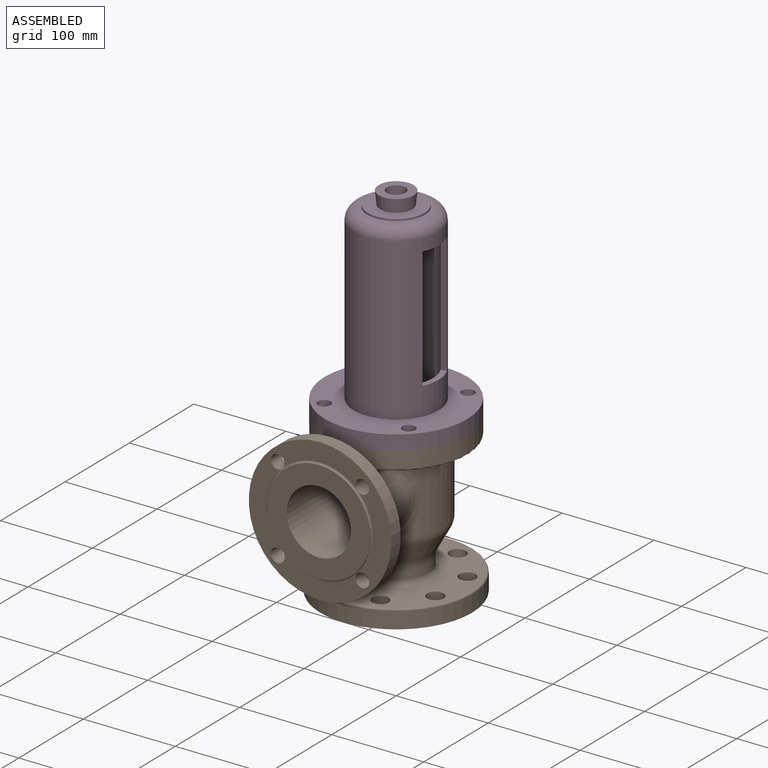
[diagram: assembled view]
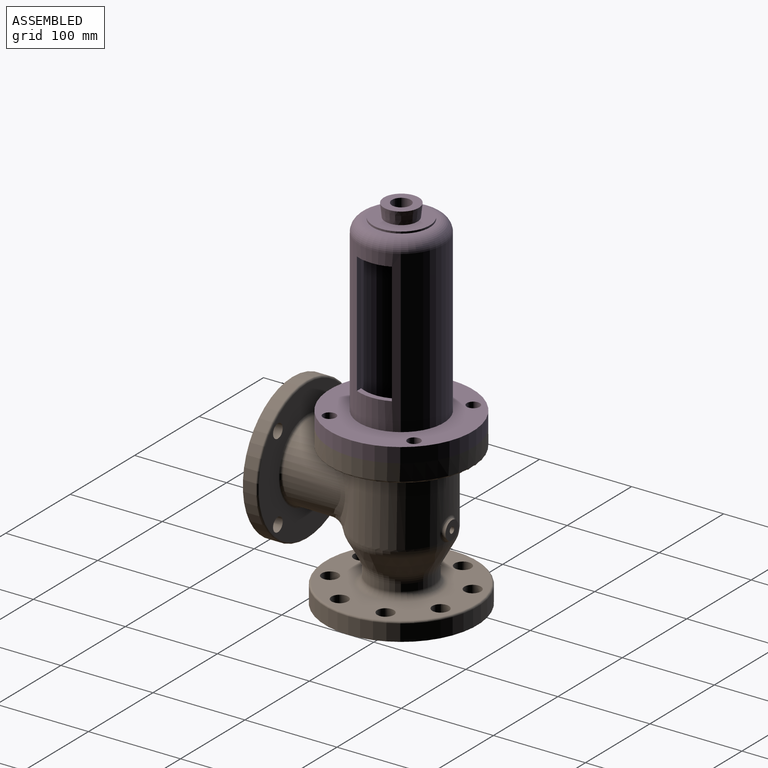
[diagram: assembled view, second angle]
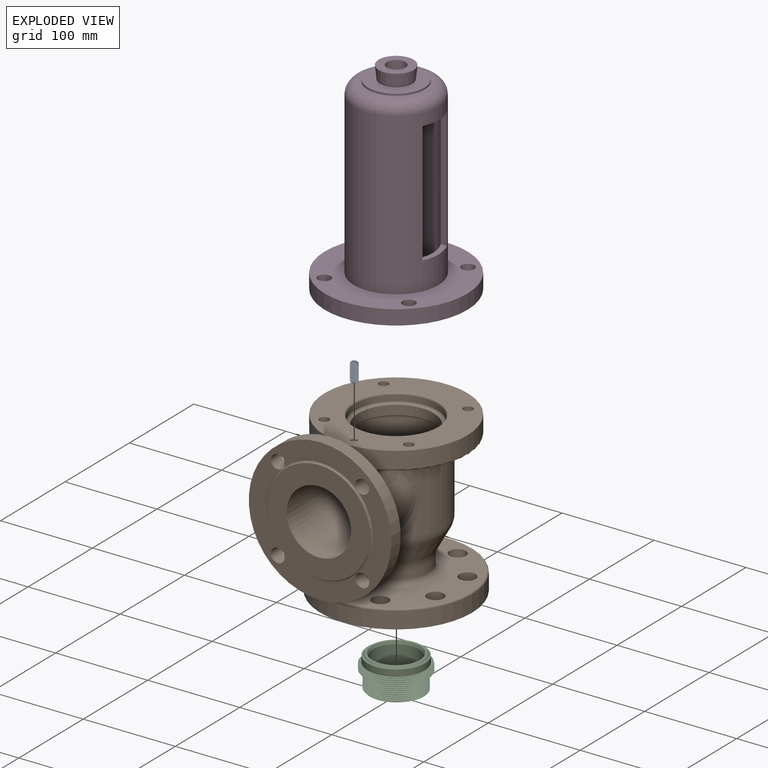
[diagram: exploded view]
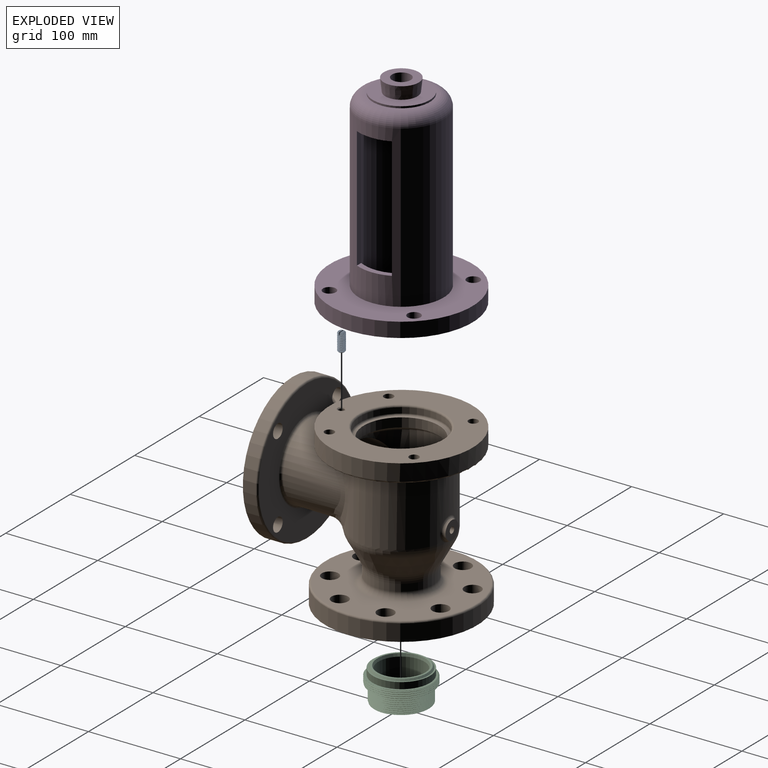
[diagram: exploded view, second angle]
ASSEMBLY  parts=4 mates=3
PART A: 24 faces, bbox 8x9.3x21.3 mm
  f0: cylinder r=4mm len=3.37mm, axis (0,0,1), area 0mm2, adj f4,f7,f11,f23
  f1: cylinder r=4mm len=7.94mm, axis (0,0,1), area 0.1mm2, adj f6,f10,f23
  f2: cylinder r=4mm len=16.28mm, axis (0,0,1), area -2.6mm2, adj f10,f18,f19,f21
  f3: plane 5.91x2.5mm, normal (0,0,1), area 11.2mm2, adj f5,f12,f23
  f4: cone r=3mm half-angle=45deg, axis (0,0,-1), area 2.8mm2, adj f0,f7,f11,f23
  f5: cone r=3mm half-angle=45deg, axis (0,0,-1), area 2.2mm2, adj f3,f12,f23
  f6: bspline ~8x4.62mm, area 12.2mm2, adj f1,f11,f23
  f7: bspline ~8x4.62mm, area 9.2mm2, adj f0,f4,f12,f23
  f8: bspline ~8x4.62mm, area 12.2mm2, adj f13,f14,f21
  f9: bspline ~3.46x2.54mm, area 0mm2, adj f16,f17,f21
  f10: bspline ~18.12x9.24mm, area 367.8mm2, adj f1,f2,f18,f19,f21,f22,f23
  f11: bspline ~8x4.62mm, area 11.4mm2, adj f0,f4,f6,f23
  f12: bspline ~8x4.62mm, area 2.5mm2, adj f3,f5,f7,f23
  f13: bspline ~8x4.62mm, area 6.9mm2, adj f8,f17,f21
  f14: cylinder r=4mm len=7.94mm, axis (0,0,1), area 0.1mm2, adj f8,f20,f21
  f15: plane 5.6x5.6mm, normal (0,0,-1), area 24.6mm2, adj f18
  f16: plane 5.89x2.5mm, normal (0,0,1), area 11.1mm2, adj f9,f17,f21
  f17: cone r=3mm half-angle=45deg, axis (0,0,-1), area 7.5mm2, adj f9,f13,f16,f21
  f18: cone r=4mm half-angle=45deg, axis (0,0,1), area 19mm2, adj f2,f10,f15,f19
  f19: bspline ~18.75x9.24mm, area 368.8mm2, adj f2,f10,f18,f20,f21,f22,f23
  f20: bspline ~8x4.62mm, area 12.2mm2, adj f14,f19,f21
  f21: plane 7.96x3.02mm, normal (0,1,0), area 20.3mm2, adj f2,f8,f9,f10,f13,f14,f16,f17
  f22: plane 6.98x1.01mm, normal (0,0,1), area 6.9mm2, adj f10,f19,f21,f23
  f23: plane 7.96x3.02mm, normal (0,-1,0), area 20.3mm2, adj f0,f1,f3,f4,f5,f6,f7,f10
PART B: 119 faces, bbox 178.6x210.7x200.3 mm
  f0: cylinder r=55mm len=6.88mm, axis (0,0,1), area 0mm2, adj f1,f118
  f1: plane 110x110mm, normal (0,0,-1), area 7539.8mm2, adj f0,f2,f103,f104,f105,f106,f107,f108
  f2: torus R=57mm, axis (0,0,-1), area 113.8mm2, adj f1,f3,f101,f102
  f3: bspline ~7.77x4.75mm, area 18.4mm2, adj f2,f4,f103,f104
  f4: cylinder r=9mm len=20mm, axis (0,0,-1), area 1131mm2, adj f3,f5,f101
  f5: plane 161x161mm, normal (0,0,1), area 12780.8mm2, adj f4,f6,f8,f10,f12,f13,f14,f16
  f6: cylinder r=9mm len=20mm, axis (0,0,-1), area 1131mm2, adj f5,f7,f101
  f7: bspline ~7.77x4.75mm, area 18.4mm2, adj f6,f110,f111,f112
  f8: cylinder r=9mm len=20mm, axis (0,0,-1), area 1131mm2, adj f5,f9,f101
  f9: bspline ~7.77x4.75mm, area 18.4mm2, adj f8,f112,f113,f114
  f10: cylinder r=9mm len=20mm, axis (0,0,-1), area 1131mm2, adj f5,f11,f101
  f11: bspline ~7.77x4.75mm, area 18.4mm2, adj f10,f104,f105,f106
  f12: cylinder r=9mm len=20mm, axis (0,0,-1), area 1131mm2, adj f5,f101,f102
  f13: cylinder r=9mm len=20mm, axis (0,0,-1), area 1131mm2, adj f5,f101,f118
  f14: cylinder r=9mm len=20mm, axis (0,0,-1), area 1131mm2, adj f5,f15,f101
  f15: bspline ~7.77x4.75mm, area 18.4mm2, adj f14,f108,f109,f110
  f16: cylinder r=9mm len=20mm, axis (0,0,-1), area 1131mm2, adj f5,f17,f101
  f17: bspline ~7.77x4.75mm, area 18.4mm2, adj f16,f106,f107,f108
  f18: torus R=42mm, axis (0,0,1), area 2593.8mm2, adj f5,f19
  f19: cylinder r=35mm len=70mm, axis (0,0,1), area 1732mm2, adj f18,f20
  f20: torus R=55mm, axis (0,0,1), area 2258.4mm2, adj f19,f21
  f21: cone r=52mm half-angle=28.7deg, axis (0,0,1), area 6862.3mm2, adj f20,f22,f95,f96,f97,f98
  f22: bspline ~9.98x5.17mm, area 22.5mm2, adj f21,f23,f95,f98
  f23: bspline ~6.29x3.02mm, area 11.8mm2, adj f22,f24,f93,f94
  f24: bspline ~9.69x6.58mm, area 26.9mm2, adj f23,f25,f94,f98
  f25: bspline ~24.6x23.79mm, area 230.2mm2, adj f24,f26,f93,f94
  f26: cylinder r=52mm len=104mm, axis (0,0,1), area 15923.3mm2, adj f25,f27,f91,f92,f95,f98
  f27: bspline ~90.36x33.7mm, area 1101.9mm2, adj f26,f28,f86,f89,f90
  f28: bspline ~29.61x25.45mm, area 241.2mm2, adj f27,f29,f85,f91
  f29: plane 151x144.18mm, normal (0,0,-1), area 6111.7mm2, adj f28,f30,f79,f80,f81,f82,f83,f84
  f30: cylinder r=5.15mm len=20mm, axis (0,0,1), area 647.2mm2, adj f29,f31
  f31: plane 155x155mm, normal (0,0,1), area 11539.4mm2, adj f30,f32,f38,f41,f79,f80,f81
  f32: cylinder r=77.5mm len=155mm, axis (0,0,1), area 8791.7mm2, adj f31,f33,f35,f37,f83
  f33: bspline ~7.98x6.12mm, area 23mm2, adj f32,f34,f83,f84
  f34: bspline ~6.01x3.32mm, area 5.2mm2, adj f33,f37,f84
  f35: bspline ~7.98x6.12mm, area 23mm2, adj f32,f36,f83,f85
  f36: bspline ~6.01x3.32mm, area 5.2mm2, adj f35,f37,f85
  f37: bspline ~62.04x16.03mm, area 260.2mm2, adj f32,f34,f36,f86
  f38: cone r=3.25mm half-angle=45deg, axis (0,0,1), area 33.3mm2, adj f31,f39
  f39: cylinder r=3.25mm len=9mm, axis (0,0,1), area 183.8mm2, adj f38,f40
  f40: cone r=0mm half-angle=59deg, axis (0,0,1), area 38.7mm2, adj f39
  f41: torus R=47mm, axis (0,0,1), area 902.6mm2, adj f31,f42
  f42: cylinder r=45mm len=90mm, axis (0,0,1), area 1696.5mm2, adj f41,f43
  f43: torus R=43mm, axis (0,0,1), area 873.9mm2, adj f42,f44
  f44: plane 86x86mm, normal (0,0,1), area 527.8mm2, adj f43,f45
  f45: cylinder r=41mm len=82mm, axis (0,0,1), area 2576.1mm2, adj f44,f46
  f46: torus R=41mm, axis (0,0,-1), area 1719.1mm2, adj f45,f47
  f47: cylinder r=45mm len=90mm, axis (0,0,1), area 16074mm2, adj f46,f48,f50,f73
  f48: cylinder r=3.4mm len=10mm, axis (0,1,0), area 213.6mm2, adj f47,f49
  f49: plane 20x20mm, normal (0,1,0), area 277.8mm2, adj f48,f94
  f50: cylinder r=35mm len=75mm, axis (0,-1,0), area 16493.4mm2, adj f47,f51
  f51: plane 112x112mm, normal (0,-1,0), area 6003.6mm2, adj f50,f52,f66,f67,f68,f69,f70,f71
  f52: torus R=58mm, axis (0,-1,0), area 264.3mm2, adj f51,f53,f64,f65
  f53: bspline ~5.97x5.96mm, area 13.9mm2, adj f52,f54,f71,f72
  f54: cylinder r=7.5mm len=16mm, axis (0,-1,0), area 754mm2, adj f53,f55,f65
  f55: plane 151x151mm, normal (0,1,0), area 10839.3mm2, adj f54,f56,f58,f59,f61,f63
  f56: cylinder r=7.5mm len=16mm, axis (0,-1,0), area 754mm2, adj f55,f57,f65
  f57: bspline ~5.97x5.96mm, area 13.9mm2, adj f56,f69,f70,f71
  f58: cylinder r=7.5mm len=16mm, axis (0,-1,0), area 754mm2, adj f55,f64,f65
  f59: cylinder r=7.5mm len=16mm, axis (0,-1,0), area 754mm2, adj f55,f60,f65
  f60: bspline ~5.97x5.96mm, area 13.9mm2, adj f59,f67,f68,f69
  f61: torus R=75.5mm, axis (0,1,0), area 1515.4mm2, adj f55,f62
  f62: cylinder r=77.5mm len=155mm, axis (0,-1,0), area 6817.3mm2, adj f61,f65
  f63: torus R=45mm, axis (0,1,0), area 1275.8mm2, adj f55,f86
  f64: bspline ~5.97x5.96mm, area 13.9mm2, adj f52,f58,f66,f67
  f65: plane 155x155mm, normal (0,-1,0), area 7600.8mm2, adj f52,f54,f56,f58,f59,f62,f67,f69
  f66: cylinder r=56mm len=3.47mm, axis (0,-1,0), area 0mm2, adj f51,f64
  f67: torus R=58mm, axis (0,-1,0), area 264.3mm2, adj f51,f60,f64,f65
  f68: cylinder r=56mm len=3.47mm, axis (0,-1,0), area 0mm2, adj f51,f60
  f69: torus R=58mm, axis (0,-1,0), area 264.3mm2, adj f51,f57,f60,f65
  f70: cylinder r=56mm len=3.47mm, axis (0,-1,0), area 0mm2, adj f51,f57
  f71: torus R=58mm, axis (0,-1,0), area 264.3mm2, adj f51,f53,f57,f65
  f72: cylinder r=56mm len=3.47mm, axis (0,-1,0), area 0mm2, adj f51,f53
  f73: torus R=41mm, axis (0,0,1), area 1719.1mm2, adj f47,f74
  f74: plane 82x82mm, normal (0,0,1), area 2574.8mm2, adj f73,f75
  f75: cylinder r=29.35mm len=58.7mm, axis (0,0,1), area 3688.2mm2, adj f74,f76
  f76: plane 63x63mm, normal (0,0,-1), area 411mm2, adj f75,f77
  f77: cylinder r=31.5mm len=63mm, axis (0,0,1), area 989.6mm2, adj f76,f78
  f78: plane 63x63mm, normal (0,0,1), area 1153.7mm2, adj f77,f117
  f79: cylinder r=5.15mm len=20mm, axis (0,0,1), area 647.2mm2, adj f29,f31
  f80: cylinder r=5.15mm len=20mm, axis (0,0,1), area 647.2mm2, adj f29,f31
  f81: cylinder r=5.15mm len=20mm, axis (0,0,1), area 647.2mm2, adj f29,f31
  f82: bspline ~27.65x23.56mm, area 241.2mm2, adj f29,f84,f91,f92
  f83: torus R=75.5mm, axis (0,0,-1), area 1308.8mm2, adj f29,f32,f33,f35
  f84: cylinder r=5mm len=15.77mm, axis (0,-1,0), area 150.1mm2, adj f29,f33,f34,f82,f86
  f85: cylinder r=5mm len=15.77mm, axis (0,-1,0), area 150.1mm2, adj f28,f29,f35,f36,f86
  f86: cylinder r=42mm len=84mm, axis (0,-1,0), area 11312.5mm2, adj f27,f37,f63,f84,f85,f87,f89,f92
  f87: bspline ~33.77x24.77mm, area 448.9mm2, adj f86,f88,f89,f92
  f88: bspline ~36x18.81mm, area 222.8mm2, adj f87,f92,f95,f96
  f89: bspline ~33.76x24.77mm, area 448.9mm2, adj f27,f86,f87,f90
  f90: bspline ~36x18.81mm, area 222.8mm2, adj f27,f89,f97,f98
  f91: torus R=57mm, axis (0,0,-1), area 1987.4mm2, adj f26,f28,f29,f82
  f92: bspline ~91.73x35.53mm, area 1101.6mm2, adj f26,f82,f86,f87,f88
  f93: bspline ~9.69x6.58mm, area 26.9mm2, adj f23,f25,f94,f95
  f94: cylinder r=10mm len=20mm, axis (0,1,0), area 21.6mm2, adj f23,f24,f25,f49,f93
  f95: torus R=32mm, axis (0,0,-1), area 1200.6mm2, adj f21,f22,f26,f88,f93,f96
  f96: bspline ~35.17x20.18mm, area 218.7mm2, adj f21,f88,f95,f97
  f97: bspline ~35.17x20.18mm, area 218.7mm2, adj f21,f90,f96,f98
  f98: torus R=32mm, axis (0,0,-1), area 1200.6mm2, adj f21,f22,f24,f26,f90,f97
  f99: torus R=80.5mm, axis (0,0,1), area 1614.1mm2, adj f5,f100
  f100: cylinder r=82.5mm len=165mm, axis (0,0,1), area 9330.5mm2, adj f99,f101
  f101: plane 165x165mm, normal (0,0,-1), area 9181.2mm2, adj f2,f4,f6,f8,f10,f12,f13,f14
  f102: bspline ~7.77x4.75mm, area 18.4mm2, adj f2,f12,f115,f116
  f103: cylinder r=55mm len=6.88mm, axis (0,0,1), area 0mm2, adj f1,f3
  f104: torus R=57mm, axis (0,0,-1), area 113.8mm2, adj f1,f3,f11,f101
  f105: cylinder r=55mm len=6.88mm, axis (0,0,1), area 0mm2, adj f1,f11
  f106: torus R=57mm, axis (0,0,-1), area 113.8mm2, adj f1,f11,f17,f101
  f107: cylinder r=55mm len=6.88mm, axis (0,0,1), area 0mm2, adj f1,f17
  f108: torus R=57mm, axis (0,0,-1), area 113.8mm2, adj f1,f15,f17,f101
  f109: cylinder r=55mm len=6.88mm, axis (0,0,1), area 0mm2, adj f1,f15
  f110: torus R=57mm, axis (0,0,-1), area 113.8mm2, adj f1,f7,f15,f101
  f111: cylinder r=55mm len=6.88mm, axis (0,0,1), area 0mm2, adj f1,f7
  f112: torus R=57mm, axis (0,0,-1), area 113.8mm2, adj f1,f7,f9,f101
  f113: cylinder r=55mm len=6.88mm, axis (0,0,1), area 0mm2, adj f1,f9
  f114: torus R=57mm, axis (0,0,-1), area 113.8mm2, adj f1,f9,f101,f118
  f115: torus R=57mm, axis (0,0,-1), area 113.8mm2, adj f1,f101,f102,f118
  f116: cylinder r=55mm len=6.88mm, axis (0,0,1), area 0mm2, adj f1,f102
  f117: cylinder r=25mm len=50mm, axis (0,0,1), area 7854mm2, adj f1,f78
  f118: bspline ~7.77x4.75mm, area 18.4mm2, adj f0,f13,f114,f115
PART C: 19 faces, bbox 69.3x79.9x37.7 mm
  f0: cylinder r=30mm len=60mm, axis (0,0,1), area -6mm2, adj f3,f4,f17,f18
  f1: cylinder r=34mm len=68mm, axis (0,0,1), area 115.2mm2, adj f7,f8,f14,f15
  f2: cylinder r=25mm len=50mm, axis (0,0,1), area 5026.5mm2, adj f3,f13
  f3: plane 58.3x58.29mm, normal (0,0,-1), area 705.3mm2, adj f0,f2,f17,f18
  f4: plane 58.9x38.2mm, normal (0,0,1), area 54.2mm2, adj f0,f5,f6,f17,f18
  f5: cylinder r=29mm len=58mm, axis (0,0,1), area 272mm2, adj f4,f6,f7,f16,f17
  f6: cylinder r=29mm len=36.6mm, axis (0,0,1), area 15.6mm2, adj f4,f5,f18
  f7: plane 67.79x67.78mm, normal (0,0,-1), area 825.2mm2, adj f1,f5,f14,f15
  f8: plane 67.76x67.75mm, normal (0,0,1), area 448.4mm2, adj f1,f9,f14,f15
  f9: cylinder r=31mm len=62mm, axis (0,0,1), area 1363.5mm2, adj f8,f10
  f10: plane 62x62mm, normal (0,0,1), area 285.1mm2, adj f9,f11
  f11: cone r=28mm half-angle=36.9deg, axis (0,0,-1), area 451.6mm2, adj f10,f12
  f12: plane 56x56mm, normal (0,0,1), area 339.3mm2, adj f11,f13
  f13: cone r=25mm half-angle=18.4deg, axis (0,0,1), area 506.7mm2, adj f2,f12
  f14: bspline ~78.52x68mm, area 1583.3mm2, adj f1,f7,f8,f15
  f15: bspline ~78.52x68mm, area 1584.3mm2, adj f1,f7,f8,f14
  f16: plane 0.84x0.72mm, normal (0,-1,0), area 0.3mm2, adj f5,f17,f18
  f17: bspline ~69.28x60mm, area 2994.5mm2, adj f0,f3,f4,f5,f16,f18
  f18: bspline ~69.28x60mm, area 2984.5mm2, adj f0,f3,f4,f6,f16,f17
PART D: 30 faces, bbox 155x155x225 mm
  f0: plane 90x90mm, normal (0,0,-1), area 1335.2mm2, adj f1,f12
  f1: cylinder r=45mm len=90mm, axis (0,0,1), area 1413.7mm2, adj f0,f2
  f2: plane 155x155mm, normal (0,0,-1), area 11863.4mm2, adj f1,f3,f16,f17,f18,f19,f28
  f3: cylinder r=77.5mm len=155mm, axis (0,0,1), area 7791.1mm2, adj f2,f4
  f4: plane 155x155mm, normal (0,0,1), area 11605.8mm2, adj f3,f5,f16,f17,f18,f19
  f5: cylinder r=46mm len=175mm, axis (0,0,1), area 40238mm2, adj f4,f6,f20,f21,f22,f23,f24,f25
  f6: torus R=33mm, axis (0,0,1), area 5295.9mm2, adj f5,f7
  f7: plane 66x66mm, normal (0,0,1), area 402.1mm2, adj f6,f8
  f8: cylinder r=31mm len=62mm, axis (0,0,1), area 389.6mm2, adj f7,f9
  f9: plane 62x62mm, normal (0,0,1), area 2057mm2, adj f8,f10
  f10: cone r=19mm half-angle=6.1deg, axis (0,0,1), area 1614.5mm2, adj f9,f11
  f11: plane 38x38mm, normal (0,0,1), area 808mm2, adj f10,f15
  f12: cylinder r=40mm len=196mm, axis (0,0,-1), area 38806.5mm2, adj f0,f13,f20,f21,f22,f23,f24,f25
  f13: torus R=33mm, axis (0,0,-1), area 2587.8mm2, adj f12,f14
  f14: plane 66x66mm, normal (0,0,-1), area 3095.1mm2, adj f13,f15
  f15: cylinder r=10.19mm len=22mm, axis (0,0,1), area 1408.3mm2, adj f11,f14
  f16: cylinder r=7mm len=16mm, axis (0,0,1), area 703.7mm2, adj f2,f4
  f17: cylinder r=7mm len=16mm, axis (0,0,1), area 703.7mm2, adj f2,f4
  f18: cylinder r=7mm len=16mm, axis (0,0,1), area 703.7mm2, adj f2,f4
  f19: cylinder r=7mm len=16mm, axis (0,0,1), area 703.7mm2, adj f2,f4
  f20: plane 38x10.8mm, normal (0,0,-1), area 236.2mm2, adj f5,f12,f21,f23
  f21: plane 132x6.69mm, normal (0,-1,0), area 883.5mm2, adj f5,f12,f20,f22
  f22: plane 38x10.8mm, normal (0,0,1), area 236.2mm2, adj f5,f12,f21,f23
  f23: plane 132x6.69mm, normal (0,1,0), area 883.5mm2, adj f5,f12,f20,f22
  f24: plane 38x10.8mm, normal (0,0,1), area 236.2mm2, adj f5,f12,f26,f27
  f25: plane 38x10.8mm, normal (0,0,-1), area 236.2mm2, adj f5,f12,f26,f27
  f26: plane 132x6.69mm, normal (0,1,0), area 883.5mm2, adj f5,f12,f24,f25
  f27: plane 132x6.69mm, normal (0,-1,0), area 883.5mm2, adj f5,f12,f24,f25
  f28: cylinder r=3mm len=10mm, axis (0,0,-1), area 188.5mm2, adj f2,f29
  f29: cone r=0mm half-angle=59deg, axis (0,0,-1), area 33mm2, adj f28
PLACE A t=(0,-65,70)mm
PLACE B at identity fixed
PLACE C t=(0,0,-58)mm
PLACE D t=(0,0,55)mm
MATE fastened A.f0 <-> B.f38  axis (0,0,1) through (0,-65,70)mm
MATE cylindrical C.f0 <-> B.f0  axis (0,0,-1) through (0,0,-40)mm
MATE fastened D.f28 <-> B.f38  axis (0,0,-1) through (0,-65,60)mm
